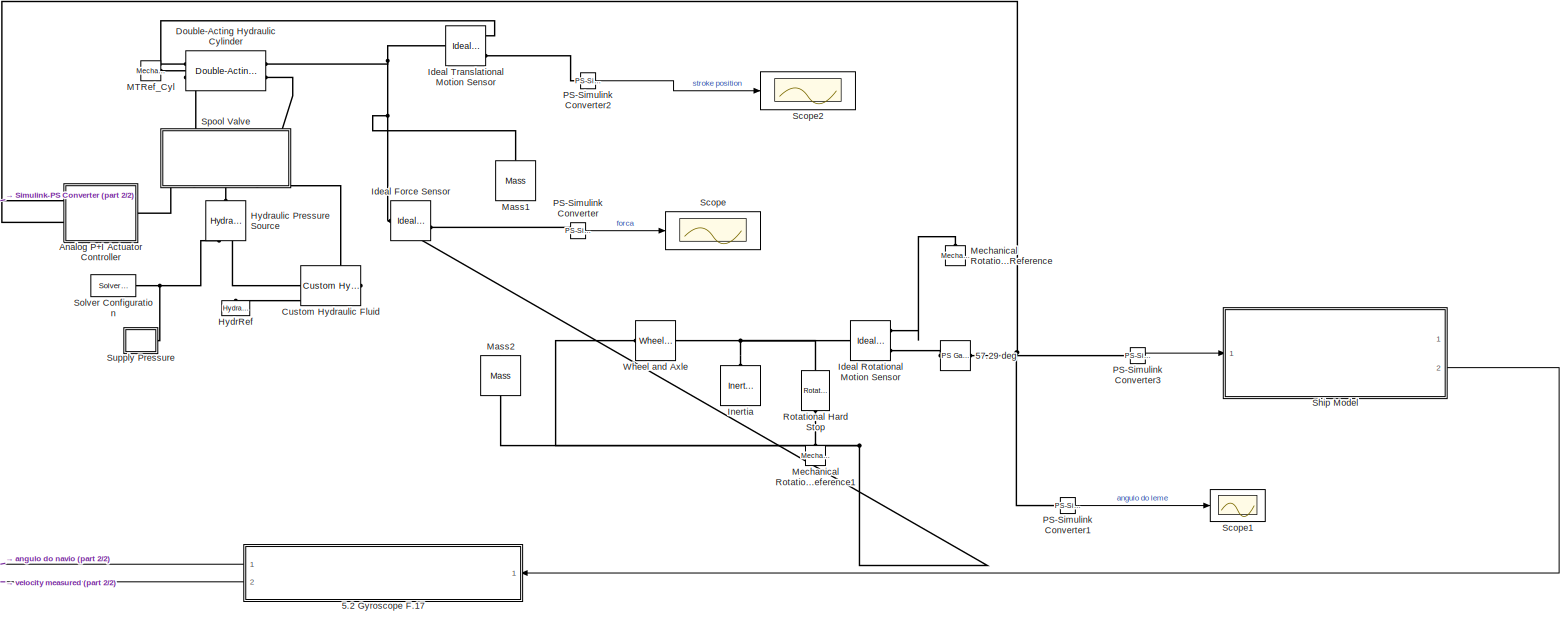
[diagram: root canvas - part 1/2, center side, full height]
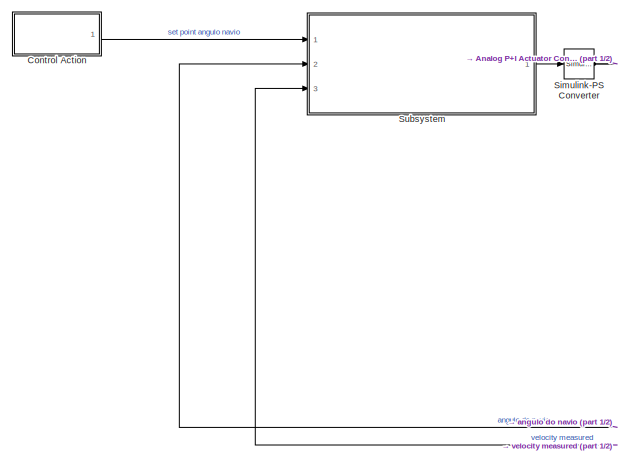
[diagram: root canvas - part 2/2, middle left region]
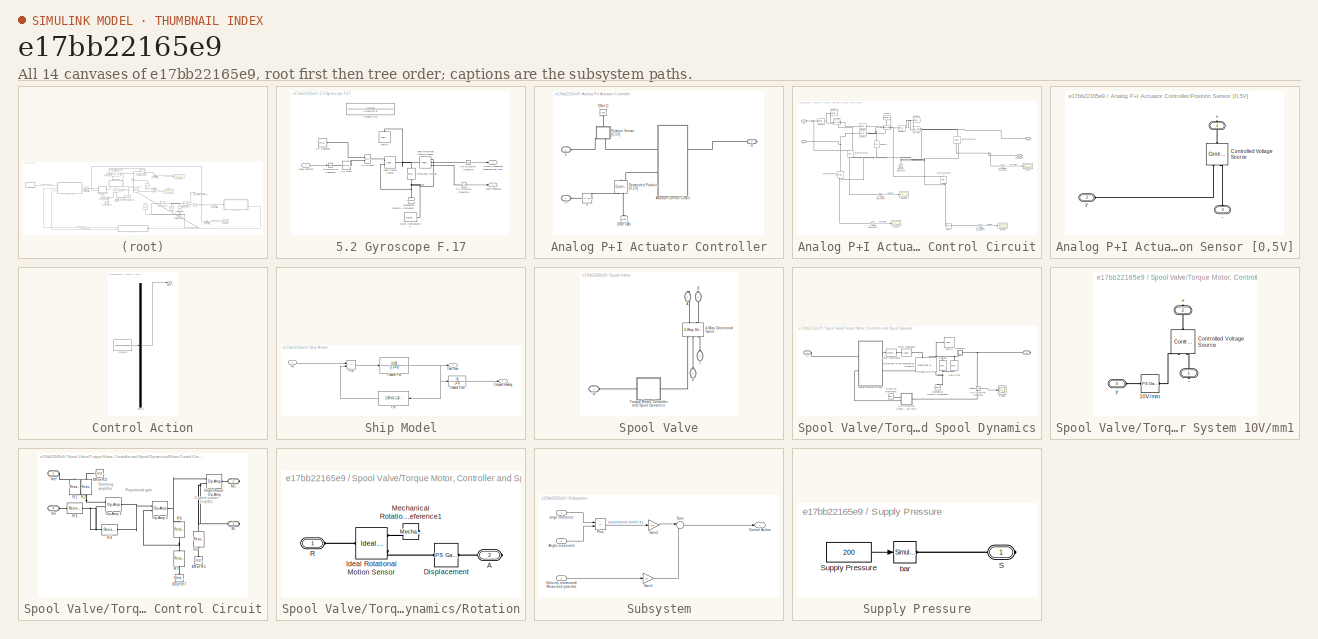
[diagram: thumbnail index - all 14 canvases of the model, root first then tree order]
MODEL slx_e17bb22165e9
KIND model
CONFIG AbsTol = 1e-3
CONFIG EnableMultiTasking = on
CONFIG FixedStep = auto
CONFIG MaxStep = 0.02
CONFIG MinStep = auto
CONFIG RelTol = 1e-3
CONFIG SampleTimeConstraint = Unconstrained
CONFIG Solver = VariableStepAuto
CONFIG SolverName = VariableStepAuto
CONFIG StartTime = 0.0
CONFIG StopTime = 30
BLOCK [SubSystem] 5.2 Gyroscope F.17
  NameLocation = top
  Ports = [1, 2]
  RequestExecContextInheritance = off
BLOCK [Outport] 5.2 Gyroscope F.17/Angle measured
BLOCK [Inport] 5.2 Gyroscope F.17/Angle rotation
BLOCK [Reference] 5.2 Gyroscope F.17/Ideal Rotational Motion Sensor  REF=fl_lib/Mechanical/Mechanical Sensors/Ideal Rotational
Motion Sensor
  Ports = [0, 0, 0, 0, 0, 1, 3]
  SourceBlock = fl_lib/Mechanical/Mechanical Sensors/Ideal Rotational\nMotion Sensor
  SourceProductBaseCode = SS
  SourceType = Ideal Rotational\nMotion Sensor
BLOCK [Reference] 5.2 Gyroscope F.17/Ideal Torque Source  REF=fl_lib/Mechanical/Mechanical Sources/Ideal Torque Source
  Ports = [0, 0, 0, 0, 0, 1, 2]
  SourceBlock = fl_lib/Mechanical/Mechanical Sources/Ideal Torque Source
  SourceProductBaseCode = SS
  SourceType = Ideal Torque Source
BLOCK [Reference] 5.2 Gyroscope F.17/Inertia  REF=fl_lib/Mechanical/Rotational Elements/Inertia
  NameLocation = right
  Ports = [0, 0, 0, 0, 0, 1]
  SourceBlock = fl_lib/Mechanical/Rotational Elements/Inertia
  SourceProductBaseCode = SS
  SourceType = Inertia
BLOCK [Reference] 5.2 Gyroscope F.17/Mechanical Rotational Reference  REF=fl_lib/Mechanical/Rotational Elements/Mechanical
Rotational Reference
  NameLocation = right
  Ports = [0, 0, 0, 0, 0, 1]
  SourceBlock = fl_lib/Mechanical/Rotational Elements/Mechanical\nRotational Reference
  SourceProductBaseCode = SS
  SourceType = Mechanical\nRotational Reference
BLOCK [Reference] 5.2 Gyroscope F.17/PS Constant  REF=fl_lib/Physical Signals/Sources/PS Constant
  Ports = [0, 0, 0, 0, 0, 0, 1]
  SourceBlock = fl_lib/Physical Signals/Sources/PS Constant
  SourceProductBaseCode = SS
  SourceType = PS Constant
BLOCK [Reference] 5.2 Gyroscope F.17/PS Gain  REF=fl_lib/Physical Signals/Functions/PS Gain
  Ports = [0, 0, 0, 0, 0, 1, 1]
  SourceBlock = fl_lib/Physical Signals/Functions/PS Gain
  SourceProductBaseCode = SS
  SourceType = PS Gain
BLOCK [Reference] 5.2 Gyroscope F.17/PS Product  REF=fl_lib/Physical Signals/Functions/PS Product
  Ports = [0, 0, 0, 0, 0, 2, 1]
  SourceBlock = fl_lib/Physical Signals/Functions/PS Product
  SourceProductBaseCode = SS
  SourceType = PS Product
BLOCK [Reference] 5.2 Gyroscope F.17/PS-Simulink Converter  REF=nesl_utility/PS-Simulink
Converter
  Ports = [0, 1, 0, 0, 0, 1]
  SourceBlock = nesl_utility/PS-Simulink\nConverter
  SourceProductBaseCode = SS
  SourceType = PS-Simulink\nConverter
BLOCK [Reference] 5.2 Gyroscope F.17/PS-Simulink Converter1  REF=nesl_utility/PS-Simulink
Converter
  Ports = [0, 1, 0, 0, 0, 1]
  SourceBlock = nesl_utility/PS-Simulink\nConverter
  SourceProductBaseCode = SS
  SourceType = PS-Simulink\nConverter
BLOCK [Reference] 5.2 Gyroscope F.17/Rotational Damper  REF=fl_lib/Mechanical/Rotational Elements/Rotational Damper
  NameLocation = left
  Ports = [0, 0, 0, 0, 0, 1, 1]
  SourceBlock = fl_lib/Mechanical/Rotational Elements/Rotational Damper
  SourceProductBaseCode = SS
  SourceType = Rotational Damper
BLOCK [Reference] 5.2 Gyroscope F.17/Simulink-PS Converter  REF=nesl_utility/Simulink-PS
Converter
  Ports = [1, 0, 0, 0, 0, 0, 1]
  SourceBlock = nesl_utility/Simulink-PS\nConverter
  SourceProductBaseCode = SS
  SourceType = Simulink-PS\nConverter
BLOCK [Reference] 5.2 Gyroscope F.17/Solver Configuration  REF=nesl_utility/Solver
Configuration
  Ports = [0, 0, 0, 0, 0, 0, 1]
  SourceBlock = nesl_utility/Solver\nConfiguration
  SourceProductBaseCode = SS
  SourceType = Solver\nConfiguration
BLOCK [TransferFcn] 5.2 Gyroscope F.17/Transfer Fcn
  Commented = on
  Denominator = [(1+Js/Fg) 0]
  Numerator = [H/Fg]
BLOCK [Outport] 5.2 Gyroscope F.17/Velocity measured//Measured yaw rate
  Port = 2
BLOCK [Reference] 57.29 deg  REF=fl_lib/Physical Signals/Functions/PS Gain
  Ports = [0, 0, 0, 0, 0, 1, 1]
  SourceBlock = fl_lib/Physical Signals/Functions/PS Gain
  SourceProductName = Foundation Library
  SourceType = PS Gain
BLOCK [SubSystem] Analog P+I Actuator Controller
  NameLocation = top
  Ports = [0, 0, 0, 0, 0, 2, 1]
  RequestExecContextInheritance = off
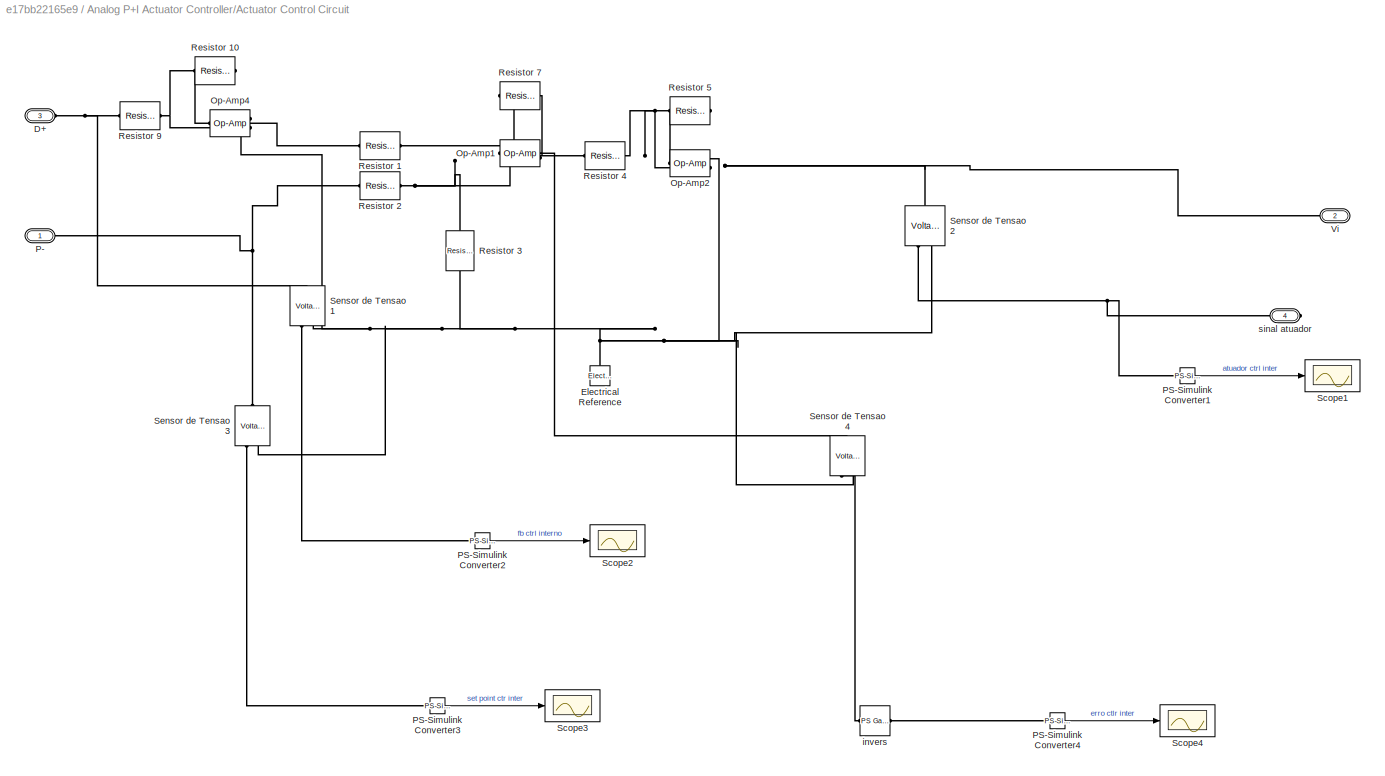
BLOCK [SubSystem] Analog P+I Actuator Controller/Actuator Control Circuit
  Ports = [0, 0, 0, 0, 0, 2, 2]
  RequestExecContextInheritance = off
  Tag = PublishSubsystem
BLOCK [PMIOPort] Analog P+I Actuator Controller/Actuator Control Circuit/D+
  Port = 3
  Side = Left
BLOCK [Reference] Analog P+I Actuator Controller/Actuator Control Circuit/Electrical Reference  REF=fl_lib/Electrical/Electrical Elements/Electrical Reference
  NameLocation = right
  Ports = [0, 0, 0, 0, 0, 1]
  SourceBlock = fl_lib/Electrical/Electrical Elements/Electrical Reference
  SourceProductBaseCode = SS
  SourceType = Electrical Reference
BLOCK [Reference] Analog P+I Actuator Controller/Actuator Control Circuit/Op-Amp1  REF=fl_lib/Electrical/Electrical Elements/Op-Amp
  Ports = [0, 0, 0, 0, 0, 2, 1]
  SourceBlock = fl_lib/Electrical/Electrical Elements/Op-Amp
  SourceProductBaseCode = SS
  SourceType = Op-Amp
BLOCK [Reference] Analog P+I Actuator Controller/Actuator Control Circuit/Op-Amp2  REF=fl_lib/Electrical/Electrical Elements/Op-Amp
  Ports = [0, 0, 0, 0, 0, 2, 1]
  SourceBlock = fl_lib/Electrical/Electrical Elements/Op-Amp
  SourceProductBaseCode = SS
  SourceType = Op-Amp
BLOCK [Reference] Analog P+I Actuator Controller/Actuator Control Circuit/Op-Amp4  REF=fl_lib/Electrical/Electrical Elements/Op-Amp
  Ports = [0, 0, 0, 0, 0, 2, 1]
  SourceBlock = fl_lib/Electrical/Electrical Elements/Op-Amp
  SourceProductBaseCode = SS
  SourceType = Op-Amp
BLOCK [PMIOPort] Analog P+I Actuator Controller/Actuator Control Circuit/P-
  Side = Left
BLOCK [Reference] Analog P+I Actuator Controller/Actuator Control Circuit/PS-Simulink Converter1  REF=nesl_utility/PS-Simulink
Converter
  Ports = [0, 1, 0, 0, 0, 1]
  SourceBlock = nesl_utility/PS-Simulink\nConverter
  SourceProductBaseCode = SS
  SourceType = PS-Simulink\nConverter
BLOCK [Reference] Analog P+I Actuator Controller/Actuator Control Circuit/PS-Simulink Converter2  REF=nesl_utility/PS-Simulink
Converter
  Ports = [0, 1, 0, 0, 0, 1]
  SourceBlock = nesl_utility/PS-Simulink\nConverter
  SourceProductBaseCode = SS
  SourceType = PS-Simulink\nConverter
BLOCK [Reference] Analog P+I Actuator Controller/Actuator Control Circuit/PS-Simulink Converter3  REF=nesl_utility/PS-Simulink
Converter
  Ports = [0, 1, 0, 0, 0, 1]
  SourceBlock = nesl_utility/PS-Simulink\nConverter
  SourceProductBaseCode = SS
  SourceType = PS-Simulink\nConverter
BLOCK [Reference] Analog P+I Actuator Controller/Actuator Control Circuit/PS-Simulink Converter4  REF=nesl_utility/PS-Simulink
Converter
  Ports = [0, 1, 0, 0, 0, 1]
  SourceBlock = nesl_utility/PS-Simulink\nConverter
  SourceProductBaseCode = SS
  SourceType = PS-Simulink\nConverter
BLOCK [Reference] Analog P+I Actuator Controller/Actuator Control Circuit/Resistor 1  REF=fl_lib/Electrical/Electrical Elements/Resistor
  NameLocation = top
  Ports = [0, 0, 0, 0, 0, 1, 1]
  SourceBlock = fl_lib/Electrical/Electrical Elements/Resistor
  SourceProductBaseCode = SS
  SourceType = Resistor
BLOCK [Reference] Analog P+I Actuator Controller/Actuator Control Circuit/Resistor 10  REF=fl_lib/Electrical/Electrical Elements/Resistor
  NameLocation = top
  Ports = [0, 0, 0, 0, 0, 1, 1]
  SourceBlock = fl_lib/Electrical/Electrical Elements/Resistor
  SourceProductBaseCode = SS
  SourceType = Resistor
BLOCK [Reference] Analog P+I Actuator Controller/Actuator Control Circuit/Resistor 2  REF=fl_lib/Electrical/Electrical Elements/Resistor
  Ports = [0, 0, 0, 0, 0, 1, 1]
  SourceBlock = fl_lib/Electrical/Electrical Elements/Resistor
  SourceProductBaseCode = SS
  SourceType = Resistor
BLOCK [Reference] Analog P+I Actuator Controller/Actuator Control Circuit/Resistor 3  REF=fl_lib/Electrical/Electrical Elements/Resistor
  NameLocation = right
  Ports = [0, 0, 0, 0, 0, 1, 1]
  SourceBlock = fl_lib/Electrical/Electrical Elements/Resistor
  SourceProductBaseCode = SS
  SourceType = Resistor
BLOCK [Reference] Analog P+I Actuator Controller/Actuator Control Circuit/Resistor 4  REF=fl_lib/Electrical/Electrical Elements/Resistor
  Ports = [0, 0, 0, 0, 0, 1, 1]
  SourceBlock = fl_lib/Electrical/Electrical Elements/Resistor
  SourceProductBaseCode = SS
  SourceType = Resistor
BLOCK [Reference] Analog P+I Actuator Controller/Actuator Control Circuit/Resistor 5  REF=fl_lib/Electrical/Electrical Elements/Resistor
  NameLocation = top
  Ports = [0, 0, 0, 0, 0, 1, 1]
  SourceBlock = fl_lib/Electrical/Electrical Elements/Resistor
  SourceProductBaseCode = SS
  SourceType = Resistor
BLOCK [Reference] Analog P+I Actuator Controller/Actuator Control Circuit/Resistor 7  REF=fl_lib/Electrical/Electrical Elements/Resistor
  NameLocation = top
  Ports = [0, 0, 0, 0, 0, 1, 1]
  SourceBlock = fl_lib/Electrical/Electrical Elements/Resistor
  SourceProductBaseCode = SS
  SourceType = Resistor
BLOCK [Reference] Analog P+I Actuator Controller/Actuator Control Circuit/Resistor 9  REF=fl_lib/Electrical/Electrical Elements/Resistor
  Ports = [0, 0, 0, 0, 0, 1, 1]
  SourceBlock = fl_lib/Electrical/Electrical Elements/Resistor
  SourceProductBaseCode = SS
  SourceType = Resistor
BLOCK [Scope] Analog P+I Actuator Controller/Actuator Control Circuit/Scope1
  Floating = off
  NumInputPorts = 1
  Ports = [1]
  ScopeSpecificationString = Simulink.scopes.TimeScopeBlockCfg('CurrentConfiguration', extmgr.ConfigurationSet(extmgr.Configuration('Core','General UI',true),extmgr.Configuration('Core','Source UI',true),extmgr.Configuration('Sources','WiredSimulink',true,'DataLoggingVariableName','ScopeData3'),extmgr.Configuration('Visuals','Time Domain',true,'SerializedDisplays',{struct('MinYLimReal','-437.10511','MaxYLimReal','183.94602','...<+1391ch>
BLOCK [Scope] Analog P+I Actuator Controller/Actuator Control Circuit/Scope2
  Floating = off
  NumInputPorts = 1
  Ports = [1]
  ScopeSpecificationString = Simulink.scopes.TimeScopeBlockCfg('CurrentConfiguration', extmgr.ConfigurationSet(extmgr.Configuration('Core','General UI',true),extmgr.Configuration('Core','Source UI',true),extmgr.Configuration('Sources','WiredSimulink',true,'DataLoggingVariableName','ScopeData4'),extmgr.Configuration('Visuals','Time Domain',true,'SerializedDisplays',{struct('MinYLimReal','-450.00000','MaxYLimReal','-250.00000',...<+1385ch>
BLOCK [Scope] Analog P+I Actuator Controller/Actuator Control Circuit/Scope3
  Floating = off
  NumInputPorts = 1
  Ports = [1]
  ScopeSpecificationString = Simulink.scopes.TimeScopeBlockCfg('CurrentConfiguration', extmgr.ConfigurationSet(extmgr.Configuration('Core','General UI',true),extmgr.Configuration('Core','Source UI',true),extmgr.Configuration('Sources','WiredSimulink',true,'DataLoggingVariableName','ScopeData5'),extmgr.Configuration('Visuals','Time Domain',true),extmgr.Configuration('Tools','Plot Navigation',true),extmgr.Configuration('Tools',...<+40ch>
BLOCK [Scope] Analog P+I Actuator Controller/Actuator Control Circuit/Scope4
  Floating = off
  NumInputPorts = 1
  Ports = [1]
  ScopeSpecificationString = Simulink.scopes.TimeScopeBlockCfg('CurrentConfiguration', extmgr.ConfigurationSet(extmgr.Configuration('Core','General UI',true),extmgr.Configuration('Core','Source UI',true),extmgr.Configuration('Sources','WiredSimulink',true,'DataLoggingVariableName','ScopeData6'),extmgr.Configuration('Visuals','Time Domain',true),extmgr.Configuration('Tools','Plot Navigation',true),extmgr.Configuration('Tools',...<+40ch>
BLOCK [Reference] Analog P+I Actuator Controller/Actuator Control Circuit/Sensor de Tensao 1  REF=fl_lib/Electrical/Electrical Sensors/Voltage Sensor
  NameLocation = right
  Ports = [0, 0, 0, 0, 0, 1, 2]
  SourceBlock = fl_lib/Electrical/Electrical Sensors/Voltage Sensor
  SourceProductBaseCode = SS
  SourceType = Voltage Sensor
BLOCK [Reference] Analog P+I Actuator Controller/Actuator Control Circuit/Sensor de Tensao 2  REF=fl_lib/Electrical/Electrical Sensors/Voltage Sensor
  NameLocation = right
  Ports = [0, 0, 0, 0, 0, 1, 2]
  SourceBlock = fl_lib/Electrical/Electrical Sensors/Voltage Sensor
  SourceProductBaseCode = SS
  SourceType = Voltage Sensor
BLOCK [Reference] Analog P+I Actuator Controller/Actuator Control Circuit/Sensor de Tensao 3  REF=fl_lib/Electrical/Electrical Sensors/Voltage Sensor
  NameLocation = right
  Ports = [0, 0, 0, 0, 0, 1, 2]
  SourceBlock = fl_lib/Electrical/Electrical Sensors/Voltage Sensor
  SourceProductBaseCode = SS
  SourceType = Voltage Sensor
BLOCK [Reference] Analog P+I Actuator Controller/Actuator Control Circuit/Sensor de Tensao 4  REF=fl_lib/Electrical/Electrical Sensors/Voltage Sensor
  NameLocation = right
  Ports = [0, 0, 0, 0, 0, 1, 2]
  SourceBlock = fl_lib/Electrical/Electrical Sensors/Voltage Sensor
  SourceProductBaseCode = SS
  SourceType = Voltage Sensor
BLOCK [PMIOPort] Analog P+I Actuator Controller/Actuator Control Circuit/Vi
  Port = 2
  Side = Right
BLOCK [Reference] Analog P+I Actuator Controller/Actuator Control Circuit/invers  REF=fl_lib/Physical Signals/Functions/PS Gain
  Ports = [0, 0, 0, 0, 0, 1, 1]
  SourceBlock = fl_lib/Physical Signals/Functions/PS Gain
  SourceProductName = Foundation Library
  SourceType = PS Gain
BLOCK [PMIOPort] Analog P+I Actuator Controller/Actuator Control Circuit/sinal atuador
  NameLocation = top
  Port = 4
  Side = Right
BLOCK [Reference] Analog P+I Actuator Controller/Demanded Position [0,5V]  REF=fl_lib/Electrical/Electrical Sources/Controlled Voltage
Source
  NameLocation = left
  Ports = [0, 0, 0, 0, 0, 1, 2]
  SourceBlock = fl_lib/Electrical/Electrical Sources/Controlled Voltage\nSource
  SourceProductName = Foundation Library
  SourceType = Controlled Voltage\nSource
BLOCK [Reference] Analog P+I Actuator Controller/ERef D  REF=fl_lib/Electrical/Electrical Elements/Electrical Reference
  NameLocation = left
  Ports = [0, 0, 0, 0, 0, 1]
  SourceBlock = fl_lib/Electrical/Electrical Elements/Electrical Reference
  SourceProductName = Foundation Library
  SourceType = Electrical Reference
BLOCK [Reference] Analog P+I Actuator Controller/ERef OA1  REF=fl_lib/Electrical/Electrical Elements/Electrical Reference
  NameLocation = right
  Ports = [0, 0, 0, 0, 0, 1]
  SourceBlock = fl_lib/Electrical/Electrical Elements/Electrical Reference
  SourceProductName = Foundation Library
  SourceType = Electrical Reference
BLOCK [SubSystem] Analog P+I Actuator Controller/Position Sensor [0,5V]
  NameLocation = left
  Ports = [0, 0, 0, 0, 0, 2, 1]
  RequestExecContextInheritance = off
BLOCK [PMIOPort] Analog P+I Actuator Controller/Position Sensor [0,5V]/+
  NameLocation = right
  Side = Right
BLOCK [PMIOPort] Analog P+I Actuator Controller/Position Sensor [0,5V]/-
  NameLocation = right
  Port = 3
  Side = Left
BLOCK [Reference] Analog P+I Actuator Controller/Position Sensor [0,5V]/Controlled Voltage Source  REF=fl_lib/Electrical/Electrical Sources/Controlled Voltage
Source
  NameLocation = right
  Ports = [0, 0, 0, 0, 0, 1, 2]
  SourceBlock = fl_lib/Electrical/Electrical Sources/Controlled Voltage\nSource
  SourceProductName = Foundation Library
  SourceType = Controlled Voltage\nSource
BLOCK [PMIOPort] Analog P+I Actuator Controller/Position Sensor [0,5V]/y
  Port = 2
  Side = Left
BLOCK [Reference] Analog P+I Actuator Controller/V  REF=fl_lib/Physical Signals/Functions/PS Gain
  Ports = [0, 0, 0, 0, 0, 1, 1]
  SourceBlock = fl_lib/Physical Signals/Functions/PS Gain
  SourceProductName = Foundation Library
  SourceType = PS Gain
BLOCK [PMIOPort] Analog P+I Actuator Controller/Vi
  Port = 3
  Side = Right
BLOCK [PMIOPort] Analog P+I Actuator Controller/r
  Port = 2
  Side = Left
  Tag = PMCPort
BLOCK [PMIOPort] Analog P+I Actuator Controller/y
  Side = Left
  Tag = PMCPort
BLOCK [SubSystem] Control Action
  ClipboardFcn = sigbuilder_block('clipboard');
  CloseFcn = sigbuilder_block('close');
  ContinueFcn = sigbuilder_block('continue');
  CopyFcn = sigbuilder_block('copy');
  DeleteFcn = sigbuilder_block('delete');
  LoadFcn = sigbuilder_block('load',[6 39 1428 672 ]);
  MaskHideContents = on
  ModelCloseFcn = sigbuilder_block('modelClose');
  NameChangeFcn = sigbuilder_block('namechange');
  OpenFcn = sigbuilder_block('open',[437.6 153 550.4 359.25 ]);
  PauseFcn = sigbuilder_block('pause');
  Ports = [0, 1]
  PreSaveFcn = sigbuilder_block('preSave');
  RequestExecContextInheritance = off
  StartFcn = sigbuilder_block('start');
  StopFcn = sigbuilder_block('stop');
  Tag = STV Subsys
BLOCK [Demux] Control Action/Demux
  DisplayOption = none
  Outputs = 1
  Ports = [1, 1]
  Tag = STV Demux
BLOCK [FromWorkspace] Control Action/FromWs
  Tag = STV FromWs
  VariableName = tuvar
BLOCK [Outport] Control Action/Signal 1
  Tag = STV Outport
BLOCK [Reference] Custom Hydraulic Fluid  REF=fl_lib/Hydraulic/Hydraulic Utilities/Custom Hydraulic
Fluid
  NameLocation = top
  Ports = [0, 0, 0, 0, 0, 0, 1]
  SourceBlock = fl_lib/Hydraulic/Hydraulic Utilities/Custom Hydraulic\nFluid
  SourceProductName = Foundation Library
  SourceType = Custom Hydraulic\nFluid
BLOCK [Reference] Double-Acting Hydraulic Cylinder  REF=sh_lib/Hydraulic Cylinders/Double-Acting
Hydraulic Cylinder
  Ports = [0, 0, 0, 0, 0, 2, 2]
  SourceBlock = sh_lib/Hydraulic Cylinders/Double-Acting\nHydraulic Cylinder
  SourceProductBaseCode = SH
  SourceType = Double-Acting\nHydraulic Cylinder
BLOCK [Reference] HydrRef  REF=fl_lib/Hydraulic/Hydraulic Elements/Hydraulic Reference
  NameLocation = right
  Ports = [0, 0, 0, 0, 0, 1]
  SourceBlock = fl_lib/Hydraulic/Hydraulic Elements/Hydraulic Reference
  SourceProductName = Foundation Library
  SourceType = Hydraulic Reference
BLOCK [Reference] Hydraulic Pressure Source  REF=fl_lib/Hydraulic/Hydraulic Sources/Hydraulic Pressure
Source
  NameLocation = left
  Ports = [0, 0, 0, 0, 0, 1, 2]
  SourceBlock = fl_lib/Hydraulic/Hydraulic Sources/Hydraulic Pressure\nSource
  SourceProductName = Foundation Library
  SourceType = Hydraulic Pressure\nSource
BLOCK [Reference] Ideal Force Sensor  REF=fl_lib/Mechanical/Mechanical Sensors/Ideal Force Sensor
  Ports = [0, 0, 0, 0, 0, 1, 2]
  SourceBlock = fl_lib/Mechanical/Mechanical Sensors/Ideal Force Sensor
  SourceProductBaseCode = SS
  SourceType = Ideal Force Sensor
BLOCK [Reference] Ideal Rotational Motion Sensor  REF=fl_lib/Mechanical/Mechanical Sensors/Ideal Rotational
Motion Sensor
  Ports = [0, 0, 0, 0, 0, 1, 3]
  SourceBlock = fl_lib/Mechanical/Mechanical Sensors/Ideal Rotational\nMotion Sensor
  SourceProductBaseCode = SS
  SourceType = Ideal Rotational\nMotion Sensor
BLOCK [Reference] Ideal Translational Motion Sensor  REF=fl_lib/Mechanical/Mechanical Sensors/Ideal Translational
Motion Sensor
  Ports = [0, 0, 0, 0, 0, 1, 3]
  SourceBlock = fl_lib/Mechanical/Mechanical Sensors/Ideal Translational\nMotion Sensor
  SourceProductBaseCode = SS
  SourceType = Ideal Translational\nMotion Sensor
BLOCK [Reference] Inertia  REF=fl_lib/Mechanical/Rotational Elements/Inertia
  NameLocation = right
  Ports = [0, 0, 0, 0, 0, 1]
  SourceBlock = fl_lib/Mechanical/Rotational Elements/Inertia
  SourceProductBaseCode = SS
  SourceType = Inertia
BLOCK [Reference] MTRef_Cyl  REF=fl_lib/Mechanical/Translational
Elements/Mechanical
Translational
Reference
  Ports = [0, 0, 0, 0, 0, 1]
  SourceBlock = fl_lib/Mechanical/Translational\nElements/Mechanical\nTranslational\nReference
  SourceProductName = Foundation Library
  SourceType = Mechanical\nTranslational\nReference
BLOCK [Reference] Mass1  REF=fl_lib/Mechanical/Translational
Elements/Mass
  NameLocation = left
  Ports = [0, 0, 0, 0, 0, 1]
  SourceBlock = fl_lib/Mechanical/Translational\nElements/Mass
  SourceProductName = Foundation Library
  SourceType = Mass
BLOCK [Reference] Mass2  REF=fl_lib/Mechanical/Translational
Elements/Mass
  NameLocation = left
  Ports = [0, 0, 0, 0, 0, 1]
  SourceBlock = fl_lib/Mechanical/Translational\nElements/Mass
  SourceProductName = Foundation Library
  SourceType = Mass
BLOCK [Reference] Mechanical Rotational Reference  REF=fl_lib/Mechanical/Rotational Elements/Mechanical
Rotational Reference
  NameLocation = right
  Ports = [0, 0, 0, 0, 0, 1]
  SourceBlock = fl_lib/Mechanical/Rotational Elements/Mechanical\nRotational Reference
  SourceProductBaseCode = SS
  SourceType = Mechanical\nRotational Reference
BLOCK [Reference] Mechanical Rotational Reference1  REF=fl_lib/Mechanical/Rotational Elements/Mechanical
Rotational Reference
  NameLocation = right
  Ports = [0, 0, 0, 0, 0, 1]
  SourceBlock = fl_lib/Mechanical/Rotational Elements/Mechanical\nRotational Reference
  SourceProductBaseCode = SS
  SourceType = Mechanical\nRotational Reference
BLOCK [Reference] PS-Simulink Converter  REF=nesl_utility/PS-Simulink
Converter
  Ports = [0, 1, 0, 0, 0, 1]
  SourceBlock = nesl_utility/PS-Simulink\nConverter
  SourceProductBaseCode = SS
  SourceType = PS-Simulink\nConverter
BLOCK [Reference] PS-Simulink Converter1  REF=nesl_utility/PS-Simulink
Converter
  Ports = [0, 1, 0, 0, 0, 1]
  SourceBlock = nesl_utility/PS-Simulink\nConverter
  SourceProductBaseCode = SS
  SourceType = PS-Simulink\nConverter
BLOCK [Reference] PS-Simulink Converter2  REF=nesl_utility/PS-Simulink
Converter
  Ports = [0, 1, 0, 0, 0, 1]
  SourceBlock = nesl_utility/PS-Simulink\nConverter
  SourceProductBaseCode = SS
  SourceType = PS-Simulink\nConverter
BLOCK [Reference] PS-Simulink Converter3  REF=nesl_utility/PS-Simulink
Converter
  Ports = [0, 1, 0, 0, 0, 1]
  SourceBlock = nesl_utility/PS-Simulink\nConverter
  SourceProductBaseCode = SS
  SourceType = PS-Simulink\nConverter
BLOCK [Reference] Rotational Hard Stop  REF=fl_lib/Mechanical/Rotational Elements/Rotational Hard Stop
  NameLocation = left
  Ports = [0, 0, 0, 0, 0, 1, 1]
  SourceBlock = fl_lib/Mechanical/Rotational Elements/Rotational Hard Stop
  SourceProductBaseCode = SS
  SourceType = Rotational Hard Stop
BLOCK [Scope] Scope
  Floating = off
  NumInputPorts = 1
  Ports = [1]
  ScopeSpecificationString = Simulink.scopes.TimeScopeBlockCfg('CurrentConfiguration', extmgr.ConfigurationSet(extmgr.Configuration('Core','General UI',true),extmgr.Configuration('Core','Source UI',true),extmgr.Configuration('Sources','WiredSimulink',true,'DataLoggingVariableName','ScopeData1'),extmgr.Configuration('Visuals','Time Domain',true,'SerializedDisplays',{struct('MinYLimReal','-1.00000','MaxYLimReal','1.00000','YLab...<+1421ch>
BLOCK [Scope] Scope1
  Floating = off
  NumInputPorts = 1
  Ports = [1]
  ScopeSpecificationString = Simulink.scopes.TimeScopeBlockCfg('CurrentConfiguration', extmgr.ConfigurationSet(extmgr.Configuration('Core','General UI',true),extmgr.Configuration('Core','Source UI',true),extmgr.Configuration('Sources','WiredSimulink',true,'DataLoggingVariableName','ScopeData2'),extmgr.Configuration('Visuals','Time Domain',true,'SerializedDisplays',{struct('MinYLimReal','-3.78473','MaxYLimReal','24.97709','YLa...<+1377ch>
BLOCK [Scope] Scope2
  Floating = off
  NumInputPorts = 1
  Ports = [1]
  ScopeSpecificationString = Simulink.scopes.TimeScopeBlockCfg('CurrentConfiguration', extmgr.ConfigurationSet(extmgr.Configuration('Core','General UI',true),extmgr.Configuration('Core','Source UI',true),extmgr.Configuration('Sources','WiredSimulink',true,'DataLoggingVariableName','ScopeData1'),extmgr.Configuration('Visuals','Time Domain',true,'SerializedDisplays',{struct('MinYLimReal','-0.82359','MaxYLimReal','0.82359','YLab...<+1753ch>
BLOCK [SubSystem] Ship Model
  Ports = [1, 2]
  RequestExecContextInheritance = off
BLOCK [Outport] Ship Model/Compass Heading
BLOCK [Fcn] Ship Model/Fcn
  Expr = 1.06*u^3+1.24*u
  NameLocation = top
BLOCK [Inport] Ship Model/In1
BLOCK [Sum] Ship Model/Plus
  IconShape = rectangular
  Inputs = +-
  Ports = [2, 1]
BLOCK [TransferFcn] Ship Model/Transfer Fcn
  Denominator = [1 3.4 0]
  Numerator = [0.05]
BLOCK [TransferFcn] Ship Model/Transfer Fcn1
  Denominator = [1 0]
BLOCK [Outport] Ship Model/Yaw Rate
  Port = 2
BLOCK [Reference] Simulink-PS Converter  REF=nesl_utility/Simulink-PS
Converter
  Ports = [1, 0, 0, 0, 0, 0, 1]
  SourceBlock = nesl_utility/Simulink-PS\nConverter
  SourceProductName = Utilities
  SourceType = Simulink-PS\nConverter
BLOCK [Reference] Solver Configuration  REF=nesl_utility/Solver
Configuration
  Ports = [0, 0, 0, 0, 0, 0, 1]
  SourceBlock = nesl_utility/Solver\nConfiguration
  SourceProductName = Utilities
  SourceType = Solver\nConfiguration
BLOCK [SubSystem] Spool Valve
  NameLocation = right
  Ports = [0, 0, 0, 0, 0, 3, 2]
  RequestExecContextInheritance = off
  Tag = PublishSubsystem
BLOCK [Reference] Spool Valve/4-Way Directional Valve  REF=sh_lib/Valves/Directional Valves/4-Way Directional
Valve
  NameLocation = right
  Ports = [0, 0, 0, 0, 0, 2, 3]
  SourceBlock = sh_lib/Valves/Directional Valves/4-Way Directional\nValve
  SourceProductBaseCode = SH
  SourceType = 4-Way Directional\nValve
BLOCK [PMIOPort] Spool Valve/A
  NameLocation = right
  Port = 4
  Side = Right
  Tag = PMCPort
BLOCK [PMIOPort] Spool Valve/B
  NameLocation = right
  Port = 5
  Side = Right
  Tag = PMCPort
BLOCK [PMIOPort] Spool Valve/P
  NameLocation = right
  Port = 2
  Side = Left
  Tag = PMCPort
BLOCK [PMIOPort] Spool Valve/T
  NameLocation = right
  Port = 3
  Side = Left
  Tag = PMCPort
BLOCK [SubSystem] Spool Valve/Torque Motor, Controller and Spool Dynamics
  Ports = [0, 0, 0, 0, 0, 1, 1]
  RequestExecContextInheritance = off
BLOCK [PMIOPort] Spool Valve/Torque Motor, Controller and Spool Dynamics/A
  Port = 2
  Side = Right
BLOCK [Reference] Spool Valve/Torque Motor, Controller and Spool Dynamics/Damper  REF=fl_lib/Mechanical/Rotational Elements/Rotational Damper
  NameLocation = right
  Ports = [0, 0, 0, 0, 0, 1, 1]
  SourceBlock = fl_lib/Mechanical/Rotational Elements/Rotational Damper
  SourceProductName = Foundation Library
  SourceType = Rotational Damper
BLOCK [Reference] Spool Valve/Torque Motor, Controller and Spool Dynamics/Electrical Reference1  REF=fl_lib/Electrical/Electrical Elements/Electrical Reference
  NameLocation = top
  Ports = [0, 0, 0, 0, 0, 1]
  SourceBlock = fl_lib/Electrical/Electrical Elements/Electrical Reference
  SourceProductName = Foundation Library
  SourceType = Electrical Reference
BLOCK [Reference] Spool Valve/Torque Motor, Controller and Spool Dynamics/Hard Stop  REF=fl_lib/Mechanical/Rotational Elements/Rotational Hard Stop
  NameLocation = right
  Ports = [0, 0, 0, 0, 0, 1, 1]
  SourceBlock = fl_lib/Mechanical/Rotational Elements/Rotational Hard Stop
  SourceProductName = Foundation Library
  SourceType = Rotational Hard Stop
BLOCK [Reference] Spool Valve/Torque Motor, Controller and Spool Dynamics/Inertia  REF=fl_lib/Mechanical/Rotational Elements/Inertia
  Ports = [0, 0, 0, 0, 0, 1]
  SourceBlock = fl_lib/Mechanical/Rotational Elements/Inertia
  SourceProductName = Foundation Library
  SourceType = Inertia
BLOCK [SubSystem] Spool Valve/Torque Motor, Controller and Spool Dynamics/LVDT Position Sensor System 10V//mm1
  Ports = [0, 0, 0, 0, 0, 1, 2]
  RequestExecContextInheritance = off
BLOCK [PMIOPort] Spool Valve/Torque Motor, Controller and Spool Dynamics/LVDT Position Sensor System 10V//mm1/+
  NameLocation = right
  Port = 2
  Side = Right
BLOCK [PMIOPort] Spool Valve/Torque Motor, Controller and Spool Dynamics/LVDT Position Sensor System 10V//mm1/-
  NameLocation = right
  Side = Right
BLOCK [Reference] Spool Valve/Torque Motor, Controller and Spool Dynamics/LVDT Position Sensor System 10V//mm1/10V//mm  REF=fl_lib/Physical Signals/Functions/PS Gain
  Ports = [0, 0, 0, 0, 0, 1, 1]
  SourceBlock = fl_lib/Physical Signals/Functions/PS Gain
  SourceProductName = Foundation Library
  SourceType = PS Gain
BLOCK [Reference] Spool Valve/Torque Motor, Controller and Spool Dynamics/LVDT Position Sensor System 10V//mm1/Controlled Voltage Source  REF=fl_lib/Electrical/Electrical Sources/Controlled Voltage
Source
  NameLocation = right
  Ports = [0, 0, 0, 0, 0, 1, 2]
  SourceBlock = fl_lib/Electrical/Electrical Sources/Controlled Voltage\nSource
  SourceProductName = Foundation Library
  SourceType = Controlled Voltage\nSource
BLOCK [PMIOPort] Spool Valve/Torque Motor, Controller and Spool Dynamics/LVDT Position Sensor System 10V//mm1/y
  Port = 3
  Side = Left
BLOCK [Reference] Spool Valve/Torque Motor, Controller and Spool Dynamics/Mechanical Rotational Reference  REF=fl_lib/Mechanical/Rotational Elements/Mechanical
Rotational Reference
  NameLocation = right
  Ports = [0, 0, 0, 0, 0, 1]
  SourceBlock = fl_lib/Mechanical/Rotational Elements/Mechanical\nRotational Reference
  SourceProductName = Foundation Library
  SourceType = Mechanical\nRotational Reference
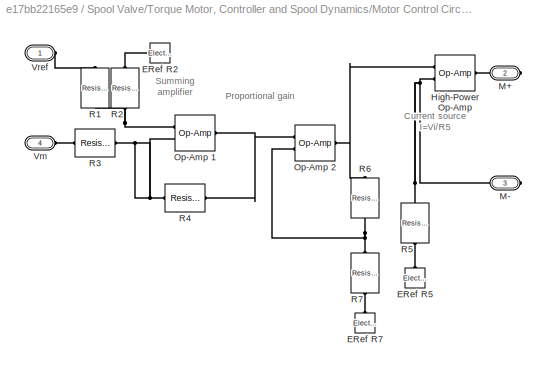
BLOCK [SubSystem] Spool Valve/Torque Motor, Controller and Spool Dynamics/Motor Control Circuit
  Ports = [0, 0, 0, 0, 0, 2, 2]
  RequestExecContextInheritance = off
  Tag = PublishSubsystem
BLOCK [Reference] Spool Valve/Torque Motor, Controller and Spool Dynamics/Motor Control Circuit/ERef R2  REF=fl_lib/Electrical/Electrical Elements/Electrical Reference
  NameLocation = top
  Ports = [0, 0, 0, 0, 0, 1]
  SourceBlock = fl_lib/Electrical/Electrical Elements/Electrical Reference
  SourceProductName = Foundation Library
  SourceType = Electrical Reference
BLOCK [Reference] Spool Valve/Torque Motor, Controller and Spool Dynamics/Motor Control Circuit/ERef R5  REF=fl_lib/Electrical/Electrical Elements/Electrical Reference
  NameLocation = right
  Ports = [0, 0, 0, 0, 0, 1]
  SourceBlock = fl_lib/Electrical/Electrical Elements/Electrical Reference
  SourceProductName = Foundation Library
  SourceType = Electrical Reference
BLOCK [Reference] Spool Valve/Torque Motor, Controller and Spool Dynamics/Motor Control Circuit/ERef R7  REF=fl_lib/Electrical/Electrical Elements/Electrical Reference
  NameLocation = left
  Ports = [0, 0, 0, 0, 0, 1]
  SourceBlock = fl_lib/Electrical/Electrical Elements/Electrical Reference
  SourceProductName = Foundation Library
  SourceType = Electrical Reference
BLOCK [Reference] Spool Valve/Torque Motor, Controller and Spool Dynamics/Motor Control Circuit/High-Power Op-Amp  REF=fl_lib/Electrical/Electrical Elements/Op-Amp
  NameLocation = top
  Ports = [0, 0, 0, 0, 0, 2, 1]
  SourceBlock = fl_lib/Electrical/Electrical Elements/Op-Amp
  SourceProductName = Foundation Library
  SourceType = Op-Amp
BLOCK [PMIOPort] Spool Valve/Torque Motor, Controller and Spool Dynamics/Motor Control Circuit/M+
  Port = 2
  Side = Right
BLOCK [PMIOPort] Spool Valve/Torque Motor, Controller and Spool Dynamics/Motor Control Circuit/M-
  Port = 3
  Side = Right
BLOCK [Reference] Spool Valve/Torque Motor, Controller and Spool Dynamics/Motor Control Circuit/Op-Amp 1  REF=fl_lib/Electrical/Electrical Elements/Op-Amp
  Ports = [0, 0, 0, 0, 0, 2, 1]
  SourceBlock = fl_lib/Electrical/Electrical Elements/Op-Amp
  SourceProductName = Foundation Library
  SourceType = Op-Amp
BLOCK [Reference] Spool Valve/Torque Motor, Controller and Spool Dynamics/Motor Control Circuit/Op-Amp 2  REF=fl_lib/Electrical/Electrical Elements/Op-Amp
  Ports = [0, 0, 0, 0, 0, 2, 1]
  SourceBlock = fl_lib/Electrical/Electrical Elements/Op-Amp
  SourceProductName = Foundation Library
  SourceType = Op-Amp
BLOCK [Reference] Spool Valve/Torque Motor, Controller and Spool Dynamics/Motor Control Circuit/R1  REF=fl_lib/Electrical/Electrical Elements/Resistor
  NameLocation = left
  Ports = [0, 0, 0, 0, 0, 1, 1]
  SourceBlock = fl_lib/Electrical/Electrical Elements/Resistor
  SourceProductName = Foundation Library
  SourceType = Resistor
BLOCK [Reference] Spool Valve/Torque Motor, Controller and Spool Dynamics/Motor Control Circuit/R2  REF=fl_lib/Electrical/Electrical Elements/Resistor
  NameLocation = right
  Ports = [0, 0, 0, 0, 0, 1, 1]
  SourceBlock = fl_lib/Electrical/Electrical Elements/Resistor
  SourceProductName = Foundation Library
  SourceType = Resistor
BLOCK [Reference] Spool Valve/Torque Motor, Controller and Spool Dynamics/Motor Control Circuit/R3  REF=fl_lib/Electrical/Electrical Elements/Resistor
  Ports = [0, 0, 0, 0, 0, 1, 1]
  SourceBlock = fl_lib/Electrical/Electrical Elements/Resistor
  SourceProductName = Foundation Library
  SourceType = Resistor
BLOCK [Reference] Spool Valve/Torque Motor, Controller and Spool Dynamics/Motor Control Circuit/R4  REF=fl_lib/Electrical/Electrical Elements/Resistor
  Ports = [0, 0, 0, 0, 0, 1, 1]
  SourceBlock = fl_lib/Electrical/Electrical Elements/Resistor
  SourceProductName = Foundation Library
  SourceType = Resistor
BLOCK [Reference] Spool Valve/Torque Motor, Controller and Spool Dynamics/Motor Control Circuit/R5  REF=fl_lib/Electrical/Electrical Elements/Resistor
  NameLocation = right
  Ports = [0, 0, 0, 0, 0, 1, 1]
  SourceBlock = fl_lib/Electrical/Electrical Elements/Resistor
  SourceProductName = Foundation Library
  SourceType = Resistor
BLOCK [Reference] Spool Valve/Torque Motor, Controller and Spool Dynamics/Motor Control Circuit/R6  REF=fl_lib/Electrical/Electrical Elements/Resistor
  NameLocation = left
  Ports = [0, 0, 0, 0, 0, 1, 1]
  SourceBlock = fl_lib/Electrical/Electrical Elements/Resistor
  SourceProductName = Foundation Library
  SourceType = Resistor
BLOCK [Reference] Spool Valve/Torque Motor, Controller and Spool Dynamics/Motor Control Circuit/R7  REF=fl_lib/Electrical/Electrical Elements/Resistor
  NameLocation = left
  Ports = [0, 0, 0, 0, 0, 1, 1]
  SourceBlock = fl_lib/Electrical/Electrical Elements/Resistor
  SourceProductName = Foundation Library
  SourceType = Resistor
BLOCK [PMIOPort] Spool Valve/Torque Motor, Controller and Spool Dynamics/Motor Control Circuit/Vm
  Port = 4
  Side = Left
BLOCK [PMIOPort] Spool Valve/Torque Motor, Controller and Spool Dynamics/Motor Control Circuit/Vref
  Side = Left
BLOCK [Reference] Spool Valve/Torque Motor, Controller and Spool Dynamics/PS-Simulink Converter  REF=nesl_utility/PS-Simulink
Converter
  Ports = [0, 1, 0, 0, 0, 1]
  SourceBlock = nesl_utility/PS-Simulink\nConverter
  SourceProductBaseCode = SS
  SourceType = PS-Simulink\nConverter
BLOCK [SubSystem] Spool Valve/Torque Motor, Controller and Spool Dynamics/Rotation
  Ports = [0, 0, 0, 0, 0, 1, 1]
  RequestExecContextInheritance = off
BLOCK [PMIOPort] Spool Valve/Torque Motor, Controller and Spool Dynamics/Rotation/A
  Port = 2
  Side = Right
BLOCK [Reference] Spool Valve/Torque Motor, Controller and Spool Dynamics/Rotation/Displacement  REF=fl_lib/Physical Signals/Functions/PS Gain
  Ports = [0, 0, 0, 0, 0, 1, 1]
  SourceBlock = fl_lib/Physical Signals/Functions/PS Gain
  SourceProductName = Foundation Library
  SourceType = PS Gain
BLOCK [Reference] Spool Valve/Torque Motor, Controller and Spool Dynamics/Rotation/Ideal Rotational Motion Sensor  REF=fl_lib/Mechanical/Mechanical Sensors/Ideal Rotational
Motion Sensor
  Ports = [0, 0, 0, 0, 0, 1, 3]
  SourceBlock = fl_lib/Mechanical/Mechanical Sensors/Ideal Rotational\nMotion Sensor
  SourceProductName = Foundation Library
  SourceType = Ideal Rotational\nMotion Sensor
BLOCK [Reference] Spool Valve/Torque Motor, Controller and Spool Dynamics/Rotation/Mechanical Rotational Reference1  REF=fl_lib/Mechanical/Rotational Elements/Mechanical
Rotational Reference
  NameLocation = top
  Ports = [0, 0, 0, 0, 0, 1]
  SourceBlock = fl_lib/Mechanical/Rotational Elements/Mechanical\nRotational Reference
  SourceProductName = Foundation Library
  SourceType = Mechanical\nRotational Reference
BLOCK [PMIOPort] Spool Valve/Torque Motor, Controller and Spool Dynamics/Rotation/R
  Side = Left
BLOCK [Reference] Spool Valve/Torque Motor, Controller and Spool Dynamics/Rotational Electromechanical Converter  REF=fl_lib/Electrical/Electrical Elements/Rotational
Electromechanical
Converter
  NameLocation = left
  Ports = [0, 0, 0, 0, 0, 2, 2]
  SourceBlock = fl_lib/Electrical/Electrical Elements/Rotational\nElectromechanical\nConverter
  SourceProductName = Foundation Library
  SourceType = Rotational\nElectromechanical\nConverter
BLOCK [Reference] Spool Valve/Torque Motor, Controller and Spool Dynamics/Rotor Inductance  REF=fl_lib/Electrical/Electrical Elements/Inductor
  Ports = [0, 0, 0, 0, 0, 1, 1]
  SourceBlock = fl_lib/Electrical/Electrical Elements/Inductor
  SourceProductName = Foundation Library
  SourceType = Inductor
BLOCK [Reference] Spool Valve/Torque Motor, Controller and Spool Dynamics/Rotor Resistance  REF=fl_lib/Electrical/Electrical Elements/Resistor
  Ports = [0, 0, 0, 0, 0, 1, 1]
  SourceBlock = fl_lib/Electrical/Electrical Elements/Resistor
  SourceProductName = Foundation Library
  SourceType = Resistor
  Tag = Factory Generic
BLOCK [Scope] Spool Valve/Torque Motor, Controller and Spool Dynamics/Scope
  Floating = off
  NumInputPorts = 1
  Ports = [1]
  ScopeSpecificationString = Simulink.scopes.TimeScopeBlockCfg('CurrentConfiguration', extmgr.ConfigurationSet(extmgr.Configuration('Core','General UI',true),extmgr.Configuration('Core','Source UI',true),extmgr.Configuration('Sources','WiredSimulink',true,'DataLoggingVariableName','ScopeData1'),extmgr.Configuration('Visuals','Time Domain',true,'SerializedDisplays',{struct('MinYLimReal','-0.00063','MaxYLimReal','0.00063','YLab...<+1380ch>
BLOCK [PMIOPort] Spool Valve/Torque Motor, Controller and Spool Dynamics/Vi
  Side = Left
BLOCK [PMIOPort] Spool Valve/Vi
  Side = Left
  Tag = PMCPort
BLOCK [SubSystem] Subsystem
  Ports = [3, 1]
  RequestExecContextInheritance = off
BLOCK [Inport] Subsystem/Angle measured
  Port = 2
BLOCK [Outport] Subsystem/Control Action
BLOCK [Gain] Subsystem/Gain1
  Gain = 10
BLOCK [Gain] Subsystem/Gain2
  Gain = 0.5
BLOCK [Sum] Subsystem/Plus
  IconShape = rectangular
  Inputs = +-
  Ports = [2, 1]
BLOCK [Sum] Subsystem/Sum
  Inputs = |+-
  Ports = [2, 1]
BLOCK [Inport] Subsystem/Velocity measured//Measured yaw rate
  Port = 3
BLOCK [Inport] Subsystem/ange reference
BLOCK [SubSystem] Supply Pressure
  Ports = [0, 0, 0, 0, 0, 0, 1]
  RequestExecContextInheritance = off
BLOCK [PMIOPort] Supply Pressure/S
  Side = Right
BLOCK [Constant] Supply Pressure/Supply Pressure
  Value = 200
BLOCK [Reference] Supply Pressure/bar  REF=nesl_utility/Simulink-PS
Converter
  Ports = [1, 0, 0, 0, 0, 0, 1]
  SourceBlock = nesl_utility/Simulink-PS\nConverter
  SourceProductName = Utilities
  SourceType = Simulink-PS\nConverter
BLOCK [Reference] Wheel and Axle  REF=fl_lib/Mechanical/Mechanisms/Wheel and Axle
  NameLocation = top
  Ports = [0, 0, 0, 0, 0, 1, 1]
  SourceBlock = fl_lib/Mechanical/Mechanisms/Wheel and Axle
  SourceProductBaseCode = SS
  SourceType = Wheel and Axle
ANNOTATION Spool Valve/Torque Motor, Controller and Spool Dynamics/Motor Control Circuit: Current source I=Vi/R5
ANNOTATION Spool Valve/Torque Motor, Controller and Spool Dynamics/Motor Control Circuit: Proportional gain
ANNOTATION Spool Valve/Torque Motor, Controller and Spool Dynamics/Motor Control Circuit: Summing amplifier
LINE 5.2 Gyroscope F.17/Angle rotation:1 -> 5.2 Gyroscope F.17/Simulink-PS Converter:1
LINE 5.2 Gyroscope F.17/PS-Simulink Converter1:1 -> 5.2 Gyroscope F.17/Angle measured:1
LINE 5.2 Gyroscope F.17/PS-Simulink Converter:1 -> 5.2 Gyroscope F.17/Velocity measured//Measured yaw rate:1
LINE 5.2 Gyroscope F.17:1 -> Subsystem:2
LINE 5.2 Gyroscope F.17:2 -> Subsystem:3
LINE Analog P+I Actuator Controller/Actuator Control Circuit/PS-Simulink Converter1:1 -> Analog P+I Actuator Controller/Actuator Control Circuit/Scope1:1
LINE Analog P+I Actuator Controller/Actuator Control Circuit/PS-Simulink Converter2:1 -> Analog P+I Actuator Controller/Actuator Control Circuit/Scope2:1
LINE Analog P+I Actuator Controller/Actuator Control Circuit/PS-Simulink Converter3:1 -> Analog P+I Actuator Controller/Actuator Control Circuit/Scope3:1
LINE Analog P+I Actuator Controller/Actuator Control Circuit/PS-Simulink Converter4:1 -> Analog P+I Actuator Controller/Actuator Control Circuit/Scope4:1
LINE Control Action:1 -> Subsystem:1
LINE PS-Simulink Converter1:1 -> Scope1:1
LINE PS-Simulink Converter2:1 -> Scope2:1
LINE PS-Simulink Converter3:1 -> Ship Model:1
LINE PS-Simulink Converter:1 -> Scope:1
LINE Ship Model/Fcn:1 -> Ship Model/Plus:2
LINE Ship Model/In1:1 -> Ship Model/Plus:1
LINE Ship Model/Plus:1 -> Ship Model/Transfer Fcn:1
LINE Ship Model/Transfer Fcn1:1 -> Ship Model/Compass Heading:1
NET Ship Model/Transfer Fcn:1 -> Ship Model/Fcn:1, Ship Model/Transfer Fcn1:1, Ship Model/Yaw Rate:1
LINE Ship Model:2 -> 5.2 Gyroscope F.17:1
LINE Spool Valve/Torque Motor, Controller and Spool Dynamics/PS-Simulink Converter:1 -> Spool Valve/Torque Motor, Controller and Spool Dynamics/Scope:1
LINE Subsystem/Angle measured:1 -> Subsystem/Plus:2
LINE Subsystem/Gain1:1 -> Subsystem/Sum:2
LINE Subsystem/Gain2:1 -> Subsystem/Sum:1
LINE Subsystem/Plus:1 -> Subsystem/Gain2:1
LINE Subsystem/Sum:1 -> Subsystem/Control Action:1
LINE Subsystem/Velocity measured//Measured yaw rate:1 -> Subsystem/Gain1:1
LINE Subsystem/ange reference:1 -> Subsystem/Plus:1
LINE Subsystem:1 -> Simulink-PS Converter:1
LINE Supply Pressure/Supply Pressure:1 -> Supply Pressure/bar:1
PNET net1: 5.2 Gyroscope F.17/Ideal Rotational Motion Sensor:LConn1 -- 5.2 Gyroscope F.17/Ideal Torque Source:LConn1 -- 5.2 Gyroscope F.17/Inertia:LConn1 -- 5.2 Gyroscope F.17/Rotational Damper:LConn1
PNET net2: 5.2 Gyroscope F.17/Ideal Rotational Motion Sensor:RConn1 -- 5.2 Gyroscope F.17/Ideal Torque Source:RConn2 -- 5.2 Gyroscope F.17/Mechanical Rotational Reference:LConn1 -- 5.2 Gyroscope F.17/Rotational Damper:RConn1 -- 5.2 Gyroscope F.17/Solver Configuration:RConn1
PLINE 5.2 Gyroscope F.17/Ideal Rotational Motion Sensor:RConn2 -- 5.2 Gyroscope F.17/PS-Simulink Converter:LConn1
PLINE 5.2 Gyroscope F.17/Ideal Rotational Motion Sensor:RConn3 -- 5.2 Gyroscope F.17/PS-Simulink Converter1:LConn1
PLINE 5.2 Gyroscope F.17/Ideal Torque Source:RConn1 -- 5.2 Gyroscope F.17/PS Product:RConn1
PLINE 5.2 Gyroscope F.17/PS Constant:RConn1 -- 5.2 Gyroscope F.17/PS Product:LConn1
PLINE 5.2 Gyroscope F.17/PS Gain:LConn1 -- 5.2 Gyroscope F.17/Simulink-PS Converter:RConn1
PLINE 5.2 Gyroscope F.17/PS Gain:RConn1 -- 5.2 Gyroscope F.17/PS Product:LConn2
PLINE 57.29 deg:LConn1 -- Ideal Rotational Motion Sensor:RConn3
PNET net3: 57.29 deg:RConn1 -- Analog P+I Actuator Controller:LConn2 -- PS-Simulink Converter1:LConn1 -- PS-Simulink Converter3:LConn1
PNET net4: Analog P+I Actuator Controller/Actuator Control Circuit/D+:RConn1 -- Analog P+I Actuator Controller/Actuator Control Circuit/Resistor 9:LConn1 -- Analog P+I Actuator Controller/Actuator Control Circuit/Sensor de Tensao 1:LConn1
PNET net5: Analog P+I Actuator Controller/Actuator Control Circuit/Electrical Reference:LConn1 -- Analog P+I Actuator Controller/Actuator Control Circuit/Op-Amp2:LConn1 -- Analog P+I Actuator Controller/Actuator Control Circuit/Op-Amp4:LConn1 -- Analog P+I Actuator Controller/Actuator Control Circuit/Resistor 3:RConn1 -- Analog P+I Actuator Controller/Actuator Control Circuit/Sensor de Tensao 1:RConn2 -- Analog P+I Actuator Controller/Actuator Control Circuit/Sensor de Tensao 2:RConn2 -- Analog P+I Actuator Controller/Actuator Control Circuit/Sensor de Tensao 3:RConn2 -- Analog P+I Actuator Controller/Actuator Control Circuit/Sensor de Tensao 4:RConn2
PNET net6: Analog P+I Actuator Controller/Actuator Control Circuit/Op-Amp1:LConn1 -- Analog P+I Actuator Controller/Actuator Control Circuit/Resistor 2:RConn1 -- Analog P+I Actuator Controller/Actuator Control Circuit/Resistor 3:LConn1
PNET net7: Analog P+I Actuator Controller/Actuator Control Circuit/Op-Amp1:LConn2 -- Analog P+I Actuator Controller/Actuator Control Circuit/Resistor 1:RConn1 -- Analog P+I Actuator Controller/Actuator Control Circuit/Resistor 7:LConn1
PNET net8: Analog P+I Actuator Controller/Actuator Control Circuit/Op-Amp1:RConn1 -- Analog P+I Actuator Controller/Actuator Control Circuit/Resistor 4:LConn1 -- Analog P+I Actuator Controller/Actuator Control Circuit/Resistor 7:RConn1 -- Analog P+I Actuator Controller/Actuator Control Circuit/Sensor de Tensao 4:LConn1
PNET net9: Analog P+I Actuator Controller/Actuator Control Circuit/Op-Amp2:LConn2 -- Analog P+I Actuator Controller/Actuator Control Circuit/Resistor 4:RConn1 -- Analog P+I Actuator Controller/Actuator Control Circuit/Resistor 5:LConn1
PNET net10: Analog P+I Actuator Controller/Actuator Control Circuit/Op-Amp2:RConn1 -- Analog P+I Actuator Controller/Actuator Control Circuit/Resistor 5:RConn1 -- Analog P+I Actuator Controller/Actuator Control Circuit/Sensor de Tensao 2:LConn1 -- Analog P+I Actuator Controller/Actuator Control Circuit/Vi:RConn1
PNET net11: Analog P+I Actuator Controller/Actuator Control Circuit/Op-Amp4:LConn2 -- Analog P+I Actuator Controller/Actuator Control Circuit/Resistor 10:LConn1 -- Analog P+I Actuator Controller/Actuator Control Circuit/Resistor 9:RConn1
PNET net12: Analog P+I Actuator Controller/Actuator Control Circuit/Op-Amp4:RConn1 -- Analog P+I Actuator Controller/Actuator Control Circuit/Resistor 10:RConn1 -- Analog P+I Actuator Controller/Actuator Control Circuit/Resistor 1:LConn1
PNET net13: Analog P+I Actuator Controller/Actuator Control Circuit/P-:RConn1 -- Analog P+I Actuator Controller/Actuator Control Circuit/Resistor 2:LConn1 -- Analog P+I Actuator Controller/Actuator Control Circuit/Sensor de Tensao 3:LConn1
PNET net14: Analog P+I Actuator Controller/Actuator Control Circuit/PS-Simulink Converter1:LConn1 -- Analog P+I Actuator Controller/Actuator Control Circuit/Sensor de Tensao 2:RConn1 -- Analog P+I Actuator Controller/Actuator Control Circuit/sinal atuador:RConn1
PLINE Analog P+I Actuator Controller/Actuator Control Circuit/PS-Simulink Converter2:LConn1 -- Analog P+I Actuator Controller/Actuator Control Circuit/Sensor de Tensao 1:RConn1
PLINE Analog P+I Actuator Controller/Actuator Control Circuit/PS-Simulink Converter3:LConn1 -- Analog P+I Actuator Controller/Actuator Control Circuit/Sensor de Tensao 3:RConn1
PLINE Analog P+I Actuator Controller/Actuator Control Circuit/PS-Simulink Converter4:LConn1 -- Analog P+I Actuator Controller/Actuator Control Circuit/invers:RConn1
PLINE Analog P+I Actuator Controller/Actuator Control Circuit/Sensor de Tensao 4:RConn1 -- Analog P+I Actuator Controller/Actuator Control Circuit/invers:LConn1
PLINE Analog P+I Actuator Controller/Actuator Control Circuit:LConn1 -- Analog P+I Actuator Controller/Position Sensor [0,5V]:LConn2
PLINE Analog P+I Actuator Controller/Actuator Control Circuit:LConn2 -- Analog P+I Actuator Controller/Demanded Position [0,5V]:LConn1
PLINE Analog P+I Actuator Controller/Actuator Control Circuit:RConn1 -- Analog P+I Actuator Controller/Vi:RConn1
PLINE Analog P+I Actuator Controller/Demanded Position [0,5V]:RConn1 -- Analog P+I Actuator Controller/V:RConn1
PLINE Analog P+I Actuator Controller/Demanded Position [0,5V]:RConn2 -- Analog P+I Actuator Controller/ERef OA1:LConn1
PLINE Analog P+I Actuator Controller/ERef D:LConn1 -- Analog P+I Actuator Controller/Position Sensor [0,5V]:RConn1
PLINE Analog P+I Actuator Controller/Position Sensor [0,5V]/+:RConn1 -- Analog P+I Actuator Controller/Position Sensor [0,5V]/Controlled Voltage Source:LConn1
PLINE Analog P+I Actuator Controller/Position Sensor [0,5V]/-:RConn1 -- Analog P+I Actuator Controller/Position Sensor [0,5V]/Controlled Voltage Source:RConn2
PLINE Analog P+I Actuator Controller/Position Sensor [0,5V]/Controlled Voltage Source:RConn1 -- Analog P+I Actuator Controller/Position Sensor [0,5V]/y:RConn1
PLINE Analog P+I Actuator Controller/Position Sensor [0,5V]:LConn1 -- Analog P+I Actuator Controller/y:RConn1
PLINE Analog P+I Actuator Controller/V:LConn1 -- Analog P+I Actuator Controller/r:RConn1
PLINE Analog P+I Actuator Controller:LConn1 -- Simulink-PS Converter:RConn1
PLINE Analog P+I Actuator Controller:RConn1 -- Spool Valve:LConn1
PNET net15: Custom Hydraulic Fluid:RConn1 -- HydrRef:LConn1 -- Hydraulic Pressure Source:RConn2 -- Spool Valve:LConn3
PNET net16: Double-Acting Hydraulic Cylinder:LConn1 -- Ideal Translational Motion Sensor:RConn1 -- MTRef_Cyl:LConn1
PLINE Double-Acting Hydraulic Cylinder:LConn2 -- Spool Valve:RConn1
PNET net17: Double-Acting Hydraulic Cylinder:RConn1 -- Ideal Force Sensor:LConn1 -- Ideal Translational Motion Sensor:LConn1 -- Mass1:LConn1 -- Mass2:LConn1 -- Wheel and Axle:RConn1
PLINE Double-Acting Hydraulic Cylinder:RConn2 -- Spool Valve:RConn2
PLINE Hydraulic Pressure Source:LConn1 -- Spool Valve:LConn2
PNET net18: Hydraulic Pressure Source:RConn1 -- Solver Configuration:RConn1 -- Supply Pressure:RConn1
PLINE Ideal Force Sensor:RConn2 -- PS-Simulink Converter:LConn1
PNET net19: Ideal Rotational Motion Sensor:LConn1 -- Inertia:LConn1 -- Rotational Hard Stop:LConn1 -- Wheel and Axle:LConn1
PLINE Ideal Rotational Motion Sensor:RConn1 -- Mechanical Rotational Reference:LConn1
PLINE Ideal Translational Motion Sensor:RConn3 -- PS-Simulink Converter2:LConn1
PLINE Mechanical Rotational Reference1:LConn1 -- Rotational Hard Stop:RConn1
PLINE Spool Valve/4-Way Directional Valve:LConn1 -- Spool Valve/A:RConn1
PLINE Spool Valve/4-Way Directional Valve:LConn2 -- Spool Valve/B:RConn1
PLINE Spool Valve/4-Way Directional Valve:RConn1 -- Spool Valve/Torque Motor, Controller and Spool Dynamics:RConn1
PLINE Spool Valve/4-Way Directional Valve:RConn2 -- Spool Valve/P:RConn1
PLINE Spool Valve/4-Way Directional Valve:RConn3 -- Spool Valve/T:RConn1
PNET net20: Spool Valve/Torque Motor, Controller and Spool Dynamics/A:RConn1 -- Spool Valve/Torque Motor, Controller and Spool Dynamics/LVDT Position Sensor System 10V//mm1:LConn1 -- Spool Valve/Torque Motor, Controller and Spool Dynamics/PS-Simulink Converter:LConn1 -- Spool Valve/Torque Motor, Controller and Spool Dynamics/Rotation:RConn1
PNET net21: Spool Valve/Torque Motor, Controller and Spool Dynamics/Damper:LConn1 -- Spool Valve/Torque Motor, Controller and Spool Dynamics/Hard Stop:LConn1 -- Spool Valve/Torque Motor, Controller and Spool Dynamics/Inertia:LConn1 -- Spool Valve/Torque Motor, Controller and Spool Dynamics/Rotation:LConn1 -- Spool Valve/Torque Motor, Controller and Spool Dynamics/Rotational Electromechanical Converter:LConn2
PNET net22: Spool Valve/Torque Motor, Controller and Spool Dynamics/Damper:RConn1 -- Spool Valve/Torque Motor, Controller and Spool Dynamics/Hard Stop:RConn1 -- Spool Valve/Torque Motor, Controller and Spool Dynamics/Mechanical Rotational Reference:LConn1 -- Spool Valve/Torque Motor, Controller and Spool Dynamics/Rotational Electromechanical Converter:RConn2
PLINE Spool Valve/Torque Motor, Controller and Spool Dynamics/Electrical Reference1:LConn1 -- Spool Valve/Torque Motor, Controller and Spool Dynamics/LVDT Position Sensor System 10V//mm1:RConn1
PLINE Spool Valve/Torque Motor, Controller and Spool Dynamics/LVDT Position Sensor System 10V//mm1/+:RConn1 -- Spool Valve/Torque Motor, Controller and Spool Dynamics/LVDT Position Sensor System 10V//mm1/Controlled Voltage Source:LConn1
PLINE Spool Valve/Torque Motor, Controller and Spool Dynamics/LVDT Position Sensor System 10V//mm1/-:RConn1 -- Spool Valve/Torque Motor, Controller and Spool Dynamics/LVDT Position Sensor System 10V//mm1/Controlled Voltage Source:RConn2
PLINE Spool Valve/Torque Motor, Controller and Spool Dynamics/LVDT Position Sensor System 10V//mm1/10V//mm:LConn1 -- Spool Valve/Torque Motor, Controller and Spool Dynamics/LVDT Position Sensor System 10V//mm1/y:RConn1
PLINE Spool Valve/Torque Motor, Controller and Spool Dynamics/LVDT Position Sensor System 10V//mm1/10V//mm:RConn1 -- Spool Valve/Torque Motor, Controller and Spool Dynamics/LVDT Position Sensor System 10V//mm1/Controlled Voltage Source:RConn1
PLINE Spool Valve/Torque Motor, Controller and Spool Dynamics/LVDT Position Sensor System 10V//mm1:RConn2 -- Spool Valve/Torque Motor, Controller and Spool Dynamics/Motor Control Circuit:LConn2
PLINE Spool Valve/Torque Motor, Controller and Spool Dynamics/Motor Control Circuit/ERef R2:LConn1 -- Spool Valve/Torque Motor, Controller and Spool Dynamics/Motor Control Circuit/R2:RConn1
PLINE Spool Valve/Torque Motor, Controller and Spool Dynamics/Motor Control Circuit/ERef R5:LConn1 -- Spool Valve/Torque Motor, Controller and Spool Dynamics/Motor Control Circuit/R5:RConn1
PLINE Spool Valve/Torque Motor, Controller and Spool Dynamics/Motor Control Circuit/ERef R7:LConn1 -- Spool Valve/Torque Motor, Controller and Spool Dynamics/Motor Control Circuit/R7:RConn1
PNET net23: Spool Valve/Torque Motor, Controller and Spool Dynamics/Motor Control Circuit/High-Power Op-Amp:LConn1 -- Spool Valve/Torque Motor, Controller and Spool Dynamics/Motor Control Circuit/Op-Amp 2:RConn1 -- Spool Valve/Torque Motor, Controller and Spool Dynamics/Motor Control Circuit/R6:LConn1
PNET net24: Spool Valve/Torque Motor, Controller and Spool Dynamics/Motor Control Circuit/High-Power Op-Amp:LConn2 -- Spool Valve/Torque Motor, Controller and Spool Dynamics/Motor Control Circuit/M-:RConn1 -- Spool Valve/Torque Motor, Controller and Spool Dynamics/Motor Control Circuit/R5:LConn1
PLINE Spool Valve/Torque Motor, Controller and Spool Dynamics/Motor Control Circuit/High-Power Op-Amp:RConn1 -- Spool Valve/Torque Motor, Controller and Spool Dynamics/Motor Control Circuit/M+:RConn1
PNET net25: Spool Valve/Torque Motor, Controller and Spool Dynamics/Motor Control Circuit/Op-Amp 1:LConn1 -- Spool Valve/Torque Motor, Controller and Spool Dynamics/Motor Control Circuit/R1:RConn1 -- Spool Valve/Torque Motor, Controller and Spool Dynamics/Motor Control Circuit/R2:LConn1
PNET net26: Spool Valve/Torque Motor, Controller and Spool Dynamics/Motor Control Circuit/Op-Amp 1:LConn2 -- Spool Valve/Torque Motor, Controller and Spool Dynamics/Motor Control Circuit/R3:RConn1 -- Spool Valve/Torque Motor, Controller and Spool Dynamics/Motor Control Circuit/R4:LConn1
PNET net27: Spool Valve/Torque Motor, Controller and Spool Dynamics/Motor Control Circuit/Op-Amp 1:RConn1 -- Spool Valve/Torque Motor, Controller and Spool Dynamics/Motor Control Circuit/Op-Amp 2:LConn1 -- Spool Valve/Torque Motor, Controller and Spool Dynamics/Motor Control Circuit/R4:RConn1
PNET net28: Spool Valve/Torque Motor, Controller and Spool Dynamics/Motor Control Circuit/Op-Amp 2:LConn2 -- Spool Valve/Torque Motor, Controller and Spool Dynamics/Motor Control Circuit/R6:RConn1 -- Spool Valve/Torque Motor, Controller and Spool Dynamics/Motor Control Circuit/R7:LConn1
PLINE Spool Valve/Torque Motor, Controller and Spool Dynamics/Motor Control Circuit/R1:LConn1 -- Spool Valve/Torque Motor, Controller and Spool Dynamics/Motor Control Circuit/Vref:RConn1
PLINE Spool Valve/Torque Motor, Controller and Spool Dynamics/Motor Control Circuit/R3:LConn1 -- Spool Valve/Torque Motor, Controller and Spool Dynamics/Motor Control Circuit/Vm:RConn1
PLINE Spool Valve/Torque Motor, Controller and Spool Dynamics/Motor Control Circuit:LConn1 -- Spool Valve/Torque Motor, Controller and Spool Dynamics/Vi:RConn1
PLINE Spool Valve/Torque Motor, Controller and Spool Dynamics/Motor Control Circuit:RConn1 -- Spool Valve/Torque Motor, Controller and Spool Dynamics/Rotor Resistance:LConn1
PLINE Spool Valve/Torque Motor, Controller and Spool Dynamics/Motor Control Circuit:RConn2 -- Spool Valve/Torque Motor, Controller and Spool Dynamics/Rotational Electromechanical Converter:RConn1
PLINE Spool Valve/Torque Motor, Controller and Spool Dynamics/Rotation/A:RConn1 -- Spool Valve/Torque Motor, Controller and Spool Dynamics/Rotation/Displacement:RConn1
PLINE Spool Valve/Torque Motor, Controller and Spool Dynamics/Rotation/Displacement:LConn1 -- Spool Valve/Torque Motor, Controller and Spool Dynamics/Rotation/Ideal Rotational Motion Sensor:RConn3
PLINE Spool Valve/Torque Motor, Controller and Spool Dynamics/Rotation/Ideal Rotational Motion Sensor:LConn1 -- Spool Valve/Torque Motor, Controller and Spool Dynamics/Rotation/R:RConn1
PLINE Spool Valve/Torque Motor, Controller and Spool Dynamics/Rotation/Ideal Rotational Motion Sensor:RConn1 -- Spool Valve/Torque Motor, Controller and Spool Dynamics/Rotation/Mechanical Rotational Reference1:LConn1
PLINE Spool Valve/Torque Motor, Controller and Spool Dynamics/Rotational Electromechanical Converter:LConn1 -- Spool Valve/Torque Motor, Controller and Spool Dynamics/Rotor Inductance:RConn1
PLINE Spool Valve/Torque Motor, Controller and Spool Dynamics/Rotor Inductance:LConn1 -- Spool Valve/Torque Motor, Controller and Spool Dynamics/Rotor Resistance:RConn1
PLINE Spool Valve/Torque Motor, Controller and Spool Dynamics:LConn1 -- Spool Valve/Vi:RConn1
PLINE Supply Pressure/S:RConn1 -- Supply Pressure/bar:RConn1
note: NET lines group one-source signal fan-out (src -> all destinations, sorted); 1:1 wires keep LINE; PNET lines group multi-terminal physical nets as a canonical sorted terminal list (undirected conserving connections); 2-terminal nets keep the pairwise PLINE form
